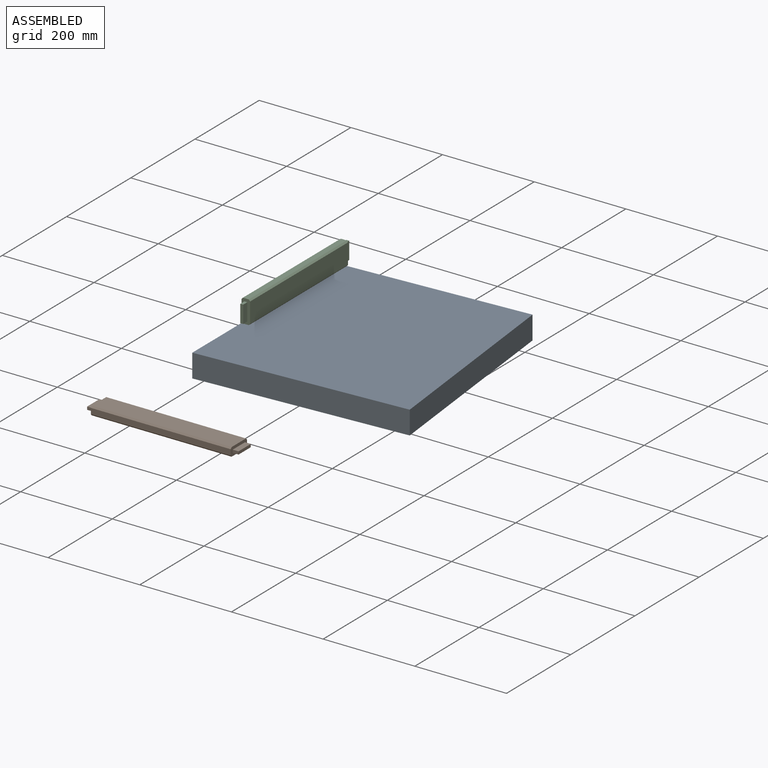
[diagram: assembled view]
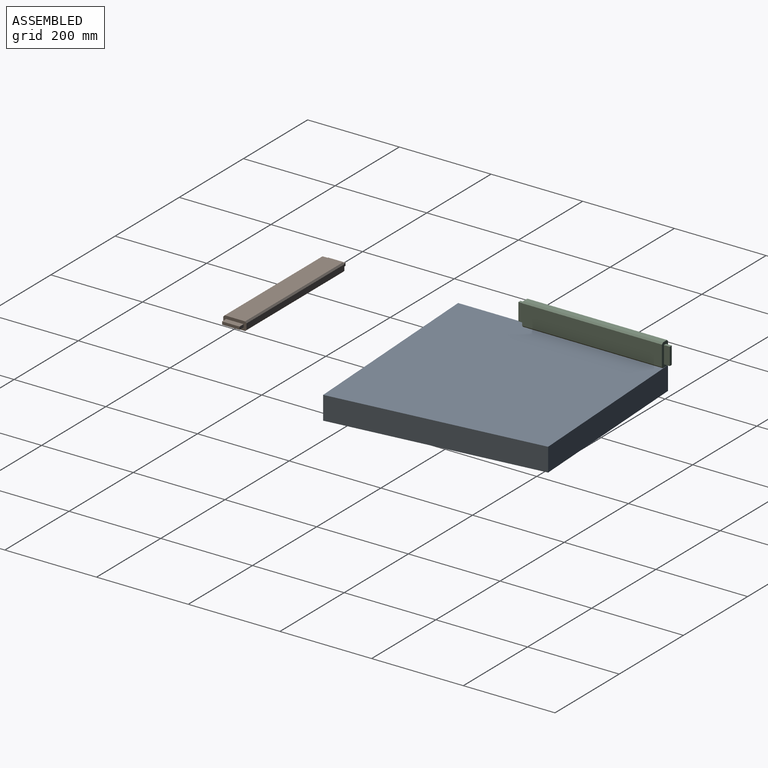
[diagram: assembled view, second angle]
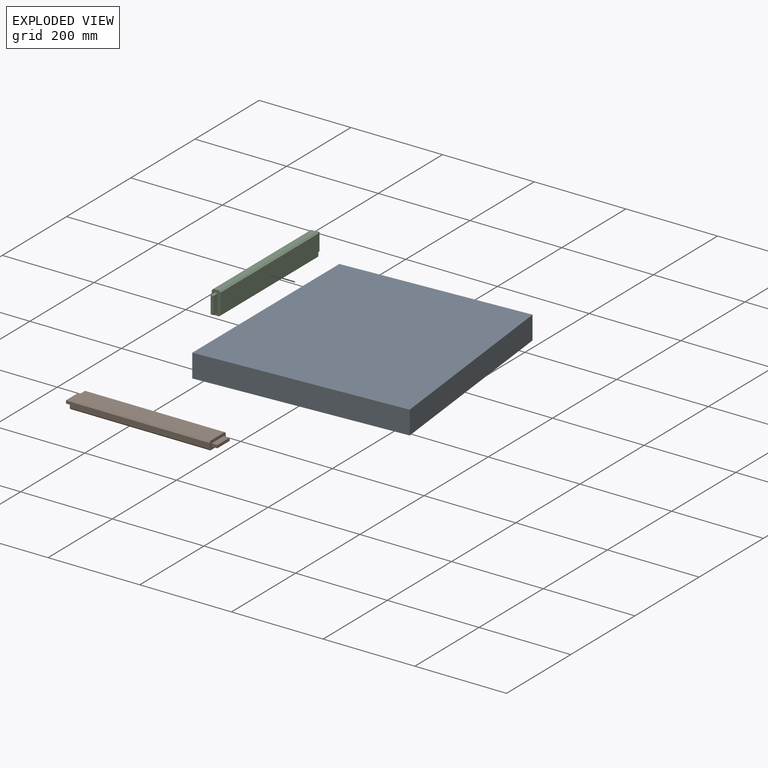
[diagram: exploded view]
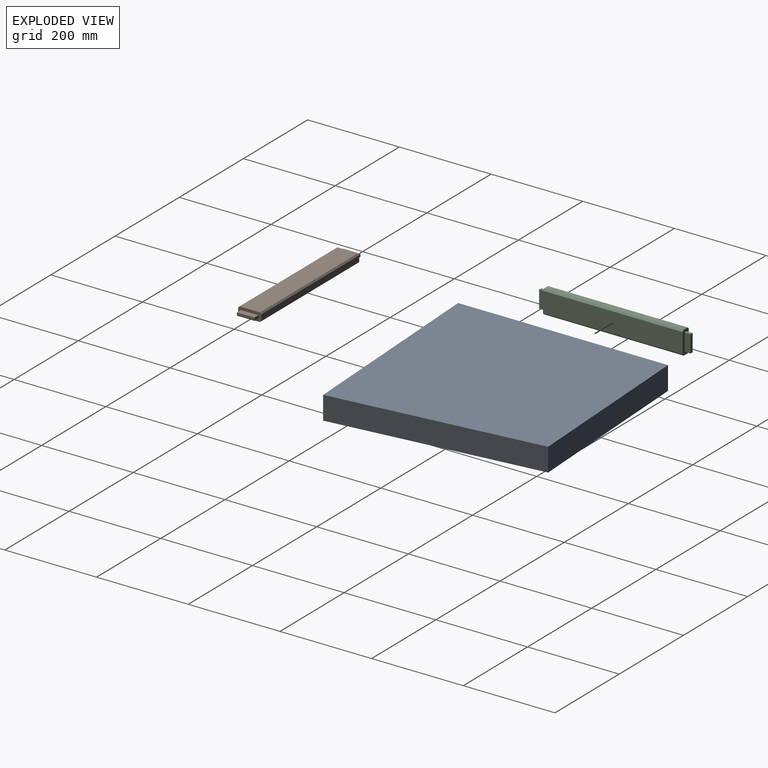
[diagram: exploded view, second angle]
ASSEMBLY  parts=3 mates=2
PART A: 6 faces, bbox 457.2x457.2x50.8 mm
  f0: plane 457.2x50.8mm, normal (-1,-0.06,0), area 23261.6mm2, adj f1,f3,f4,f5
  f1: plane 406.4x50.8mm, normal (0,-1,0), area 20645.1mm2, adj f0,f2,f4,f5
  f2: plane 457.2x50.8mm, normal (1,-0.06,0), area 23261.6mm2, adj f1,f3,f4,f5
  f3: plane 457.2x50.8mm, normal (0,1,0), area 23225.8mm2, adj f0,f2,f4,f5
  f4: plane 457.2x457.2mm, normal (0,0,1), area 197419mm2, adj f0,f1,f2,f3
  f5: plane 457.2x457.2mm, normal (0,0,-1), area 197419mm2, adj f0,f1,f2,f3
PART B: 20 faces, bbox 330.2x50.8x19.1 mm
  f0: plane 50.8x19.05mm, normal (-1,0,0), area 705.6mm2, adj f2,f3,f4,f5,f11,f12,f13,f14
  f1: plane 50.8x19.05mm, normal (1,0,0), area 705.6mm2, adj f2,f3,f4,f5,f6,f7,f8,f9
  f2: plane 304.8x12.7mm, normal (0,1,0), area 3871mm2, adj f0,f1,f16,f17
  f3: plane 304.8x12.7mm, normal (0,-1,0), area 3871mm2, adj f0,f1,f18,f19
  f4: plane 304.8x44.45mm, normal (0,0,1), area 13548.4mm2, adj f0,f1,f16,f19
  f5: plane 304.8x44.45mm, normal (0,0,-1), area 13548.4mm2, adj f0,f1,f17,f18
  f6: plane 12.7x6.35mm, normal (0,-1,0), area 80.6mm2, adj f1,f7,f9,f10
  f7: plane 38.1x12.7mm, normal (0,0,-1), area 483.9mm2, adj f1,f6,f8,f10
  f8: plane 12.7x6.35mm, normal (0,1,0), area 80.6mm2, adj f1,f7,f9,f10
  f9: plane 38.1x12.7mm, normal (0,0,1), area 483.9mm2, adj f1,f6,f8,f10
  f10: plane 38.1x6.35mm, normal (1,0,0), area 241.9mm2, adj f6,f7,f8,f9
  f11: plane 12.7x6.35mm, normal (0,-1,0), area 80.6mm2, adj f0,f12,f14,f15
  f12: plane 38.1x12.7mm, normal (0,0,-1), area 483.9mm2, adj f0,f11,f13,f15
  f13: plane 12.7x6.35mm, normal (0,1,0), area 80.6mm2, adj f0,f12,f14,f15
  f14: plane 38.1x12.7mm, normal (0,0,1), area 483.9mm2, adj f0,f11,f13,f15
  f15: plane 38.1x6.35mm, normal (-1,0,0), area 241.9mm2, adj f11,f12,f13,f14
  f16: plane 304.8x3.18mm, normal (0,0.71,0.71), area 1368.6mm2, adj f0,f1,f2,f4
  f17: plane 304.8x3.18mm, normal (0,0.71,-0.71), area 1368.6mm2, adj f0,f1,f2,f5
  f18: plane 304.8x3.18mm, normal (0,-0.71,-0.71), area 1368.6mm2, adj f0,f1,f3,f5
  f19: plane 304.8x3.18mm, normal (0,-0.71,0.71), area 1368.6mm2, adj f0,f1,f3,f4
PART C: same geometry as B
PLACE A rot(axis=(1,0.03,0),180deg) t=(9.26,384.94,63.48)mm
PLACE B t=(-61.87,-135.02,87.82)mm
PLACE C rot(axis=(-0.58,0.58,-0.58),120deg) t=(-196.79,449.51,114.28)mm
MATE parallel C.f5 <-> A.f0  axis (-1,0,0) through (-206.31,601.91,114.28)mm
MATE planar A.f5 <-> C.f2  axis (0,0,1) through (9.51,380.46,88.88)mm
